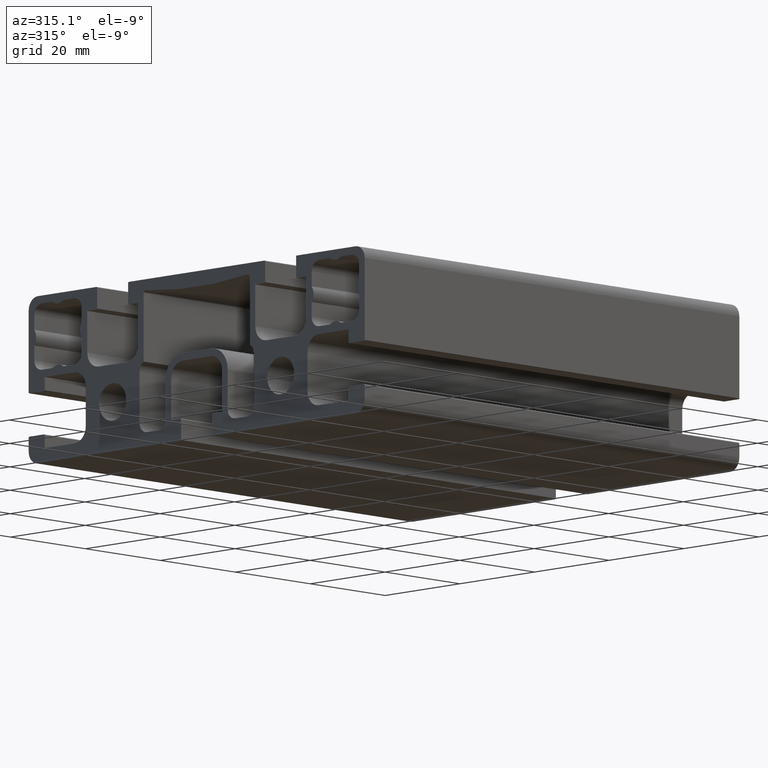
[diagram: clean part render]
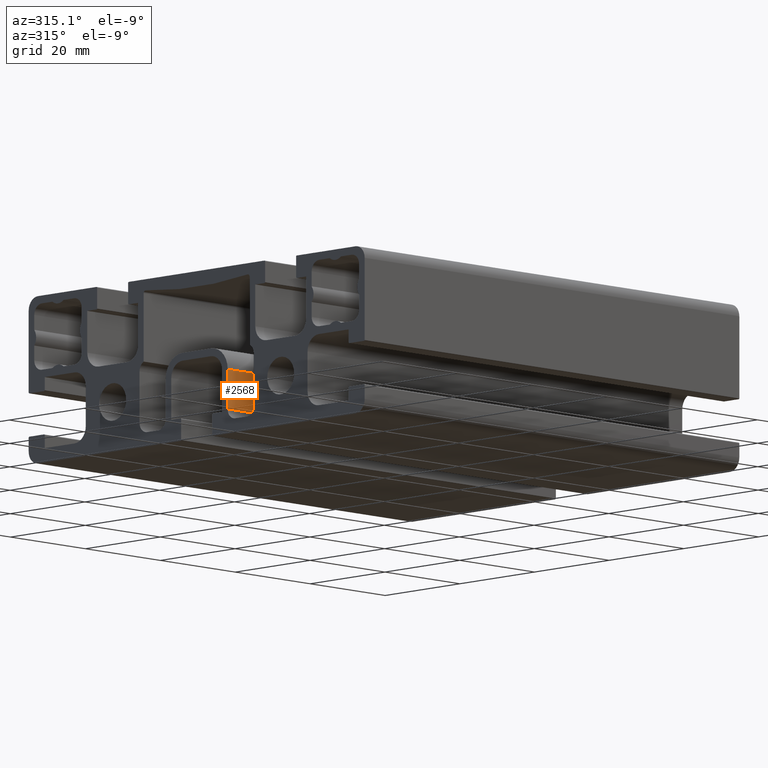
[diagram: same view with one face highlighted and labeled with its STEP entity id]
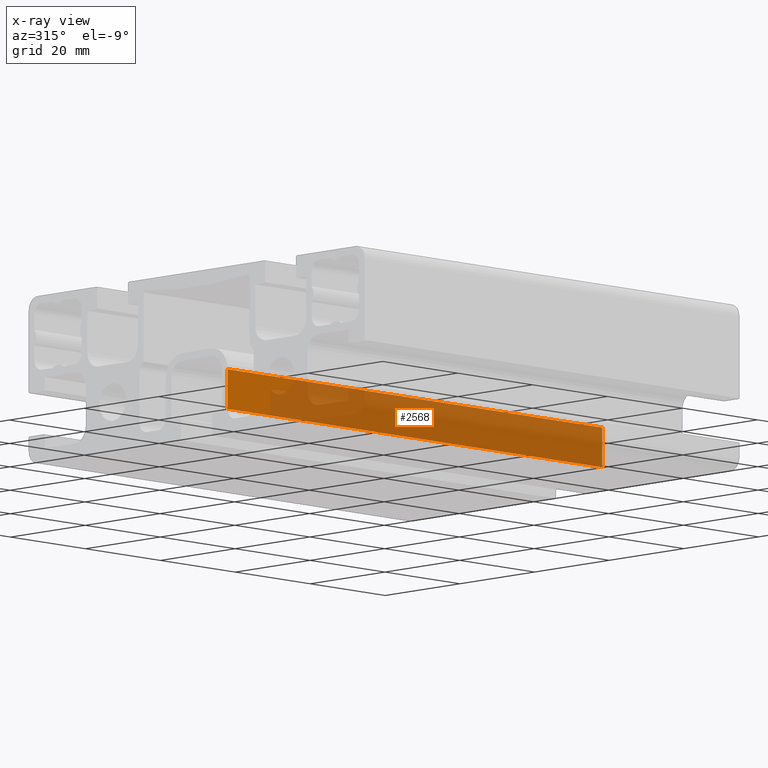
[diagram: x-ray of the same camera — body ghosted, the highlighted face saturated]
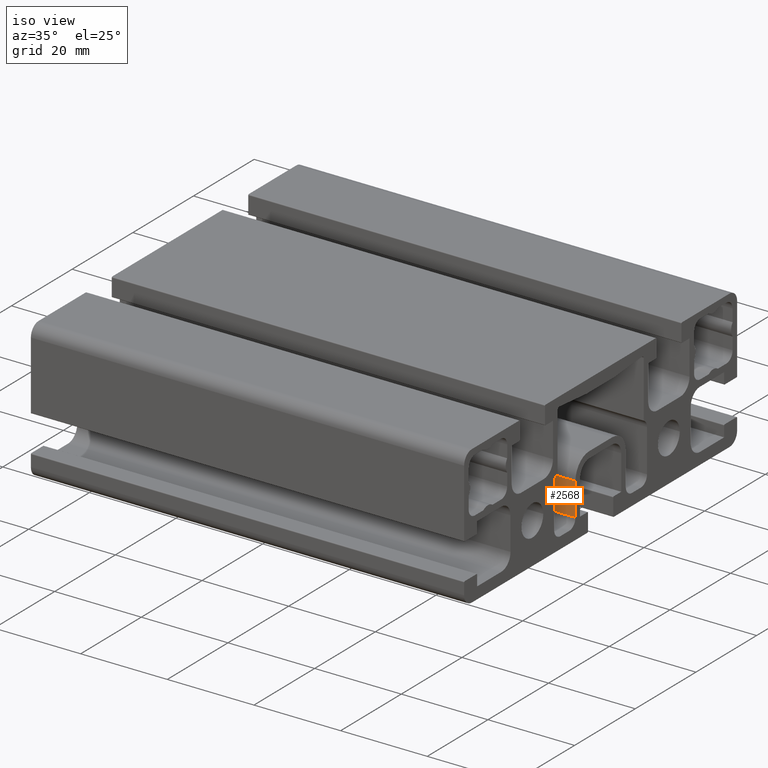
[diagram: same view with one face highlighted and labeled with its STEP entity id]
A machine part, auxiliary view. The second image highlights one B-rep face of the part: STEP entity #2568.
The next image is the same camera in x-ray: the body ghosted, the highlighted face saturated — about 87% of this face is hidden behind the body in this view.
A second angle (iso view) of the same face is appended — the face is thin or edge-on in the first view.
In plain terms, the highlighted planar face has unit normal (0, 1, 0).
Its self-contained STEP definition (entity closure, byte-faithful):
#30=PLANE('',#2738);
#109=FACE_OUTER_BOUND('',#243,.T.);
#243=EDGE_LOOP('',(#1752,#1753,#1754,#1755));
#523=LINE('',#3841,#793);
#524=LINE('',#3845,#794);
#525=LINE('',#3847,#795);
#526=LINE('',#3848,#796);
#793=VECTOR('',#3050,10.);
#794=VECTOR('',#3055,10.);
#795=VECTOR('',#3056,10.);
#796=VECTOR('',#3057,10.);
#1066=VERTEX_POINT('',#3838);
#1067=VERTEX_POINT('',#3840);
#1068=VERTEX_POINT('',#3844);
#1069=VERTEX_POINT('',#3846);
#1342=EDGE_CURVE('',#1067,#1066,#523,.T.);
#1344=EDGE_CURVE('',#1068,#1066,#524,.T.);
#1345=EDGE_CURVE('',#1069,#1068,#525,.T.);
#1346=EDGE_CURVE('',#1067,#1069,#526,.T.);
#1752=ORIENTED_EDGE('',*,*,#1342,.T.);
#1753=ORIENTED_EDGE('',*,*,#1344,.F.);
#1754=ORIENTED_EDGE('',*,*,#1345,.F.);
#1755=ORIENTED_EDGE('',*,*,#1346,.F.);
#2568=ADVANCED_FACE('',(#109),#30,.F.);
#2738=AXIS2_PLACEMENT_3D('',#3843,#3053,#3054);
#3050=DIRECTION('',(-1.,0.,0.));
#3053=DIRECTION('center_axis',(0.,1.,0.));
#3054=DIRECTION('ref_axis',(0.,0.,1.));
#3055=DIRECTION('',(0.,0.,1.));
#3056=DIRECTION('',(-1.,0.,0.));
#3057=DIRECTION('',(0.,0.,-1.));
#3838=CARTESIAN_POINT('',(-50.,-8.3,-3.69999999999999));
#3840=CARTESIAN_POINT('',(50.,-8.3,-3.69999999999999));
#3841=CARTESIAN_POINT('',(0.,-8.3,-3.69999999999999));
#3843=CARTESIAN_POINT('Origin',(0.,-8.3,-11.3));
#3844=CARTESIAN_POINT('',(-50.,-8.3,-11.3));
#3845=CARTESIAN_POINT('',(-50.,-8.3,-5.9913870914786));
#3846=CARTESIAN_POINT('',(50.,-8.3,-11.3));
#3847=CARTESIAN_POINT('',(0.,-8.3,-11.3));
#3848=CARTESIAN_POINT('',(50.,-8.3,-5.9913870914786));